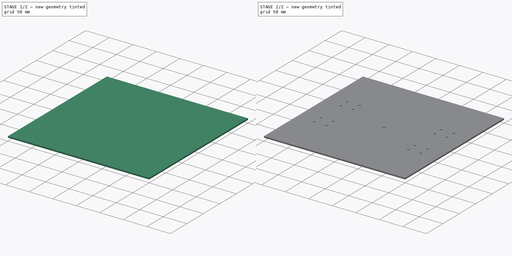
[diagram: build sequence overview — one tinted view per stage of 2, left to right]
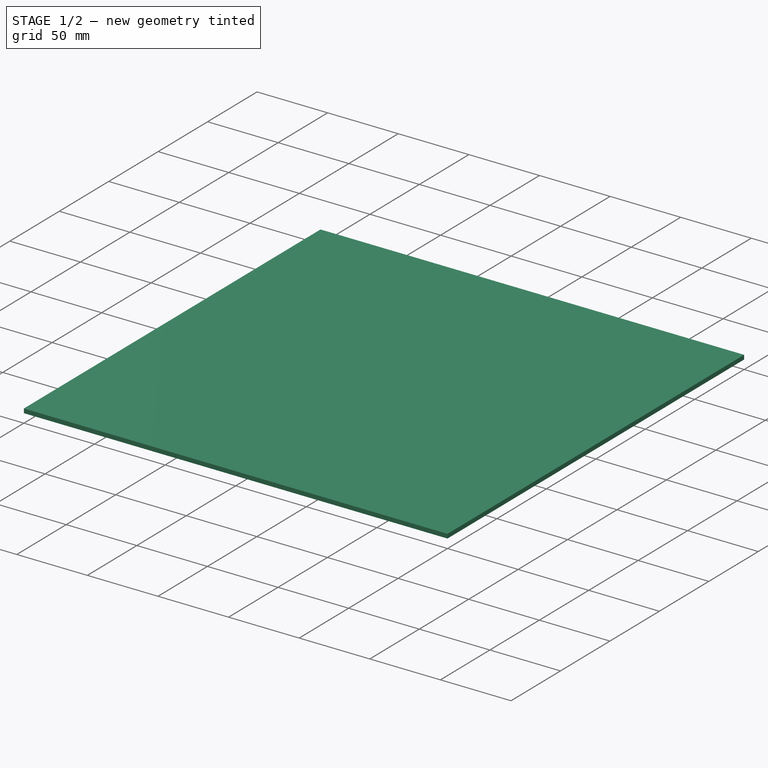
[diagram: stage 1 of 2 — iso view after this stage's code; geometry added in this stage tinted green]
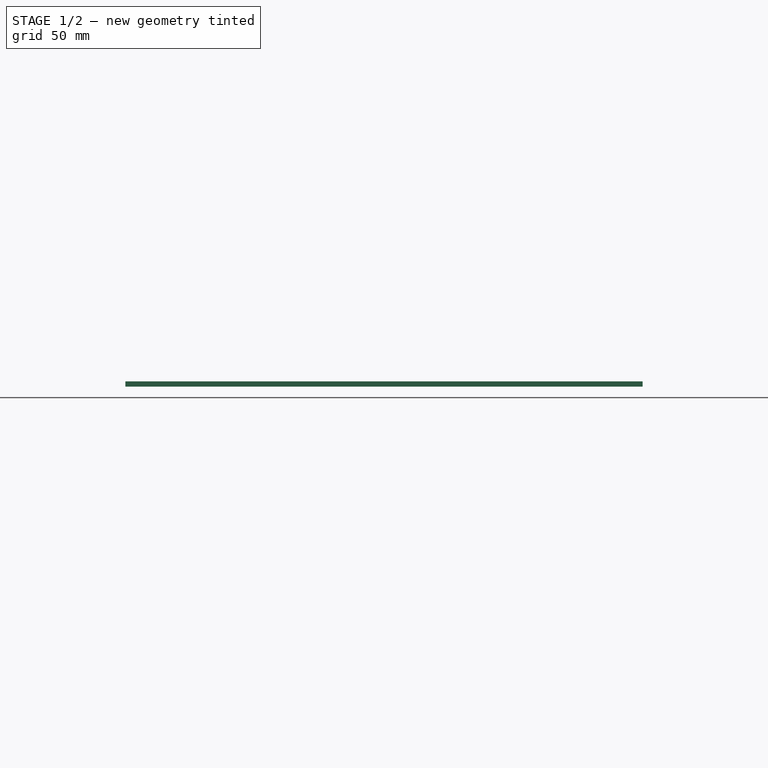
[diagram: stage 1 of 2 — front view after this stage's code; geometry added in this stage tinted green]
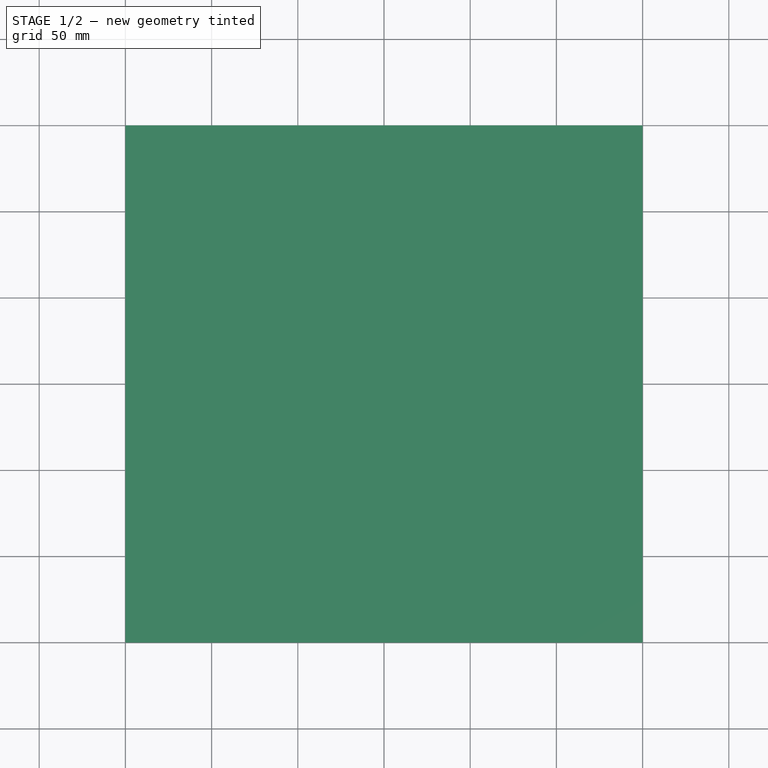
[diagram: stage 1 of 2 — top view after this stage's code; geometry added in this stage tinted green]
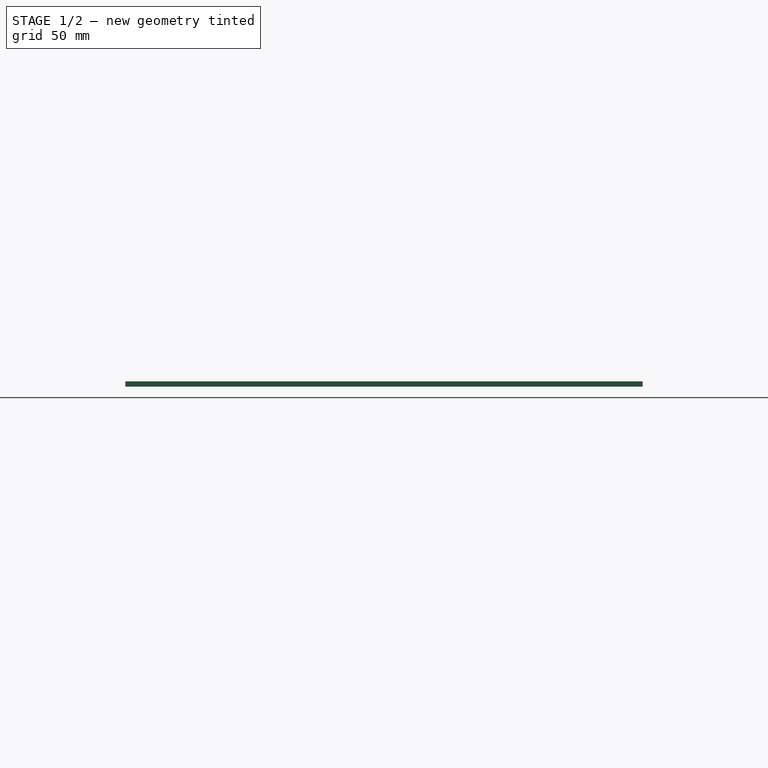
[diagram: stage 1 of 2 — right view after this stage's code; geometry added in this stage tinted green]
FCSTD DOCUMENT  (FreeCAD 1.0R39109 (Git))
Label: 0_aluminum_plate
License: All rights reserved
LicenseURL: https://en.wikipedia.org/wiki/All_rights_reserved
objects: Sketcher::SketchObject×2, App::FeaturePython×1, PartDesign::Pad×1, PartDesign::Hole×1, PartDesign::Body×1
note: 11 computed .brp shape members not serialized (recipe doc carries the construction recipe); baked Part::Feature solids carry a one-line shape summary decoded from their .brp

FEATURE [Sketcher::SketchObject] Sketch
  ArcFitTolerance = 1e-06
  AttachmentSupport = -> [XY_Plane]
  FullyConstrained = true
  MakeInternals = false
  MapMode = 5
  expr: Constraints[10] = dd.L
  expr: Constraints[11] = dd.W_1
  sketch-geometry (5):
    g0: LineSegment StartX=-150 StartY=-150 StartZ=0 EndX=150 EndY=-150 EndZ=0
    g1: LineSegment StartX=150 StartY=-150 StartZ=0 EndX=150 EndY=150 EndZ=0
    g2: LineSegment StartX=150 StartY=150 StartZ=0 EndX=-150 EndY=150 EndZ=0
    g3: LineSegment StartX=-150 StartY=150 StartZ=0 EndX=-150 EndY=-150 EndZ=0
    g4: GeomPoint [constr] X=0 Y=0 Z=0
  constraints (12):
    c: Coincident(g0,g1)
    c: Coincident(g1,g2)
    c: Coincident(g2,g3)
    c: Coincident(g3,g0)
    c: Horizontal(g0)
    c: Horizontal(g2)
    c: Vertical(g1)
    c: Vertical(g3)
    c: Symmetric(g2,g0,g4)
    c: Coincident(g4,g-1)
    c: DistanceY(g3,g3) = 300
    c: Distance(g0,g0) = 300
FEATURE [App::FeaturePython] dd  # WARN: FeaturePython — macro-defined, semantics opaque (R4)
  Bearing_D = 80
  D_1 = 3
  DynamicData = Created with DynamicData (v2.74) workbench. | This is a simple container object built | for holding custom properties.
  Hole_D_X = 26
  Hole_D_Y = 20
  L = 300
  Rail_D = 200
  W_1 = 300
FEATURE [PartDesign::Pad] Pad
  Direction = (0,0,1)
  Length = 3
  Length2 = 10
  Profile = -> Sketch
  ReferenceAxis = -> Sketch [N_Axis]
  Refine = true
  Suppressed = false
  Type = 0
  expr: Length = dd.D_1
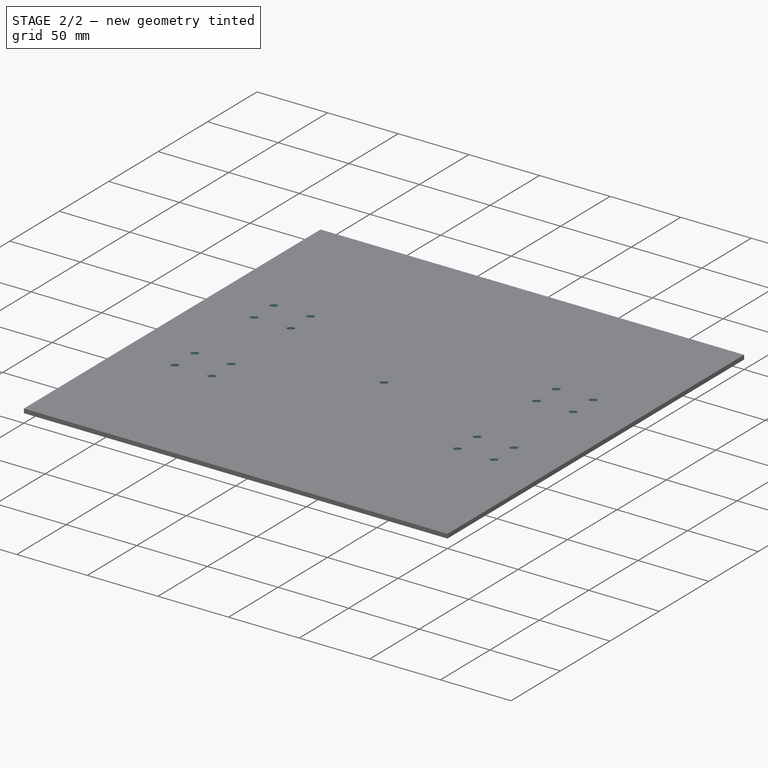
[diagram: stage 2 of 2 — iso view after this stage's code; geometry added in this stage tinted green]
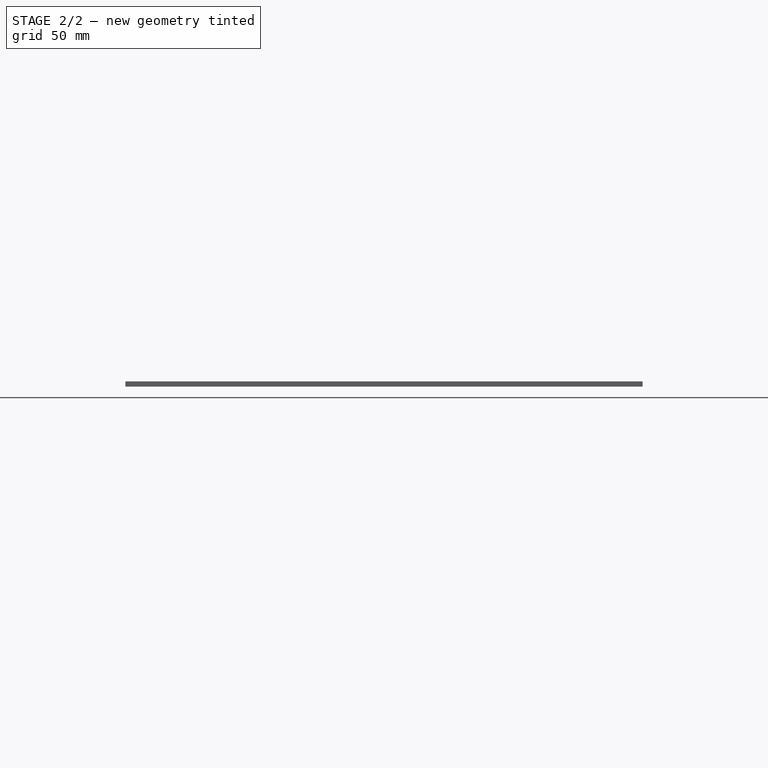
[diagram: stage 2 of 2 — front view after this stage's code; geometry added in this stage tinted green]
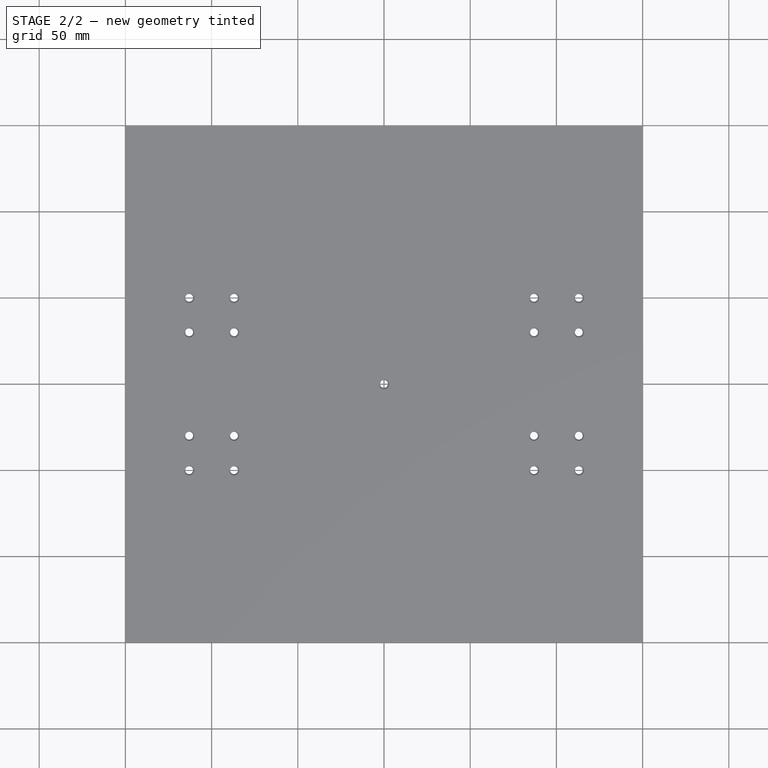
[diagram: stage 2 of 2 — top view after this stage's code; geometry added in this stage tinted green]
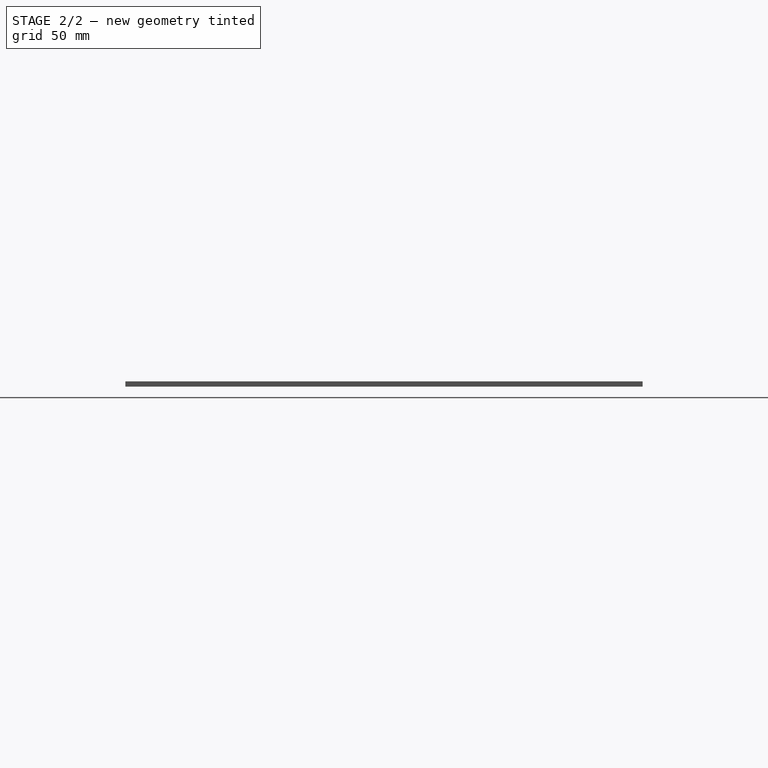
[diagram: stage 2 of 2 — right view after this stage's code; geometry added in this stage tinted green]
FEATURE [Sketcher::SketchObject] Sketch001
  ArcFitTolerance = 1e-06
  AttachmentSupport = -> [Pad]
  ExternalGeometry = -> [Pad]
  FullyConstrained = false
  MakeInternals = false
  MapMode = 5
  Placement = pos=(0,0,3) rot=(0,0,1;0rad)
  expr: Constraints[56] = dd.Hole_D_Y
  expr: Constraints[57] = dd.Hole_D_X
  expr: Constraints[8] = dd.Rail_D
  expr: Constraints[9] = dd.Bearing_D
  sketch-geometry (45):
    g0: LineSegment [constr] StartX=100 StartY=-40 StartZ=0 EndX=100 EndY=40 EndZ=0
    g1: LineSegment [constr] StartX=100 StartY=40 StartZ=0 EndX=-100 EndY=40 EndZ=0
    g2: LineSegment [constr] StartX=-100 StartY=40 StartZ=0 EndX=-100 EndY=-40 EndZ=0
    g3: LineSegment [constr] StartX=-100 StartY=-40 StartZ=0 EndX=100 EndY=-40 EndZ=0
    g4: LineSegment [constr] StartX=-87 StartY=30 StartZ=0 EndX=-87 EndY=50 EndZ=0
    g5: LineSegment [constr] StartX=-87 StartY=50 StartZ=0 EndX=-113 EndY=50 EndZ=0
    g6: LineSegment [constr] StartX=-113 StartY=50 StartZ=0 EndX=-113 EndY=30 EndZ=0
    g7: LineSegment [constr] StartX=-113 StartY=30 StartZ=0 EndX=-87 EndY=30 EndZ=0
    g8: GeomPoint [constr] X=-100 Y=40 Z=0
    g9: LineSegment [constr] StartX=113 StartY=30 StartZ=0 EndX=113 EndY=50 EndZ=0
    g10: LineSegment [constr] StartX=113 StartY=50 StartZ=0 EndX=87 EndY=50 EndZ=0
    g11: LineSegment [constr] StartX=87 StartY=50 StartZ=0 EndX=87 EndY=30 EndZ=0
    g12: LineSegment [constr] StartX=87 StartY=30 StartZ=0 EndX=113 EndY=30 EndZ=0
    g13: GeomPoint [constr] X=100 Y=40 Z=0
    g14: LineSegment [constr] StartX=87 StartY=-30 StartZ=0 EndX=87 EndY=-50 EndZ=0
    g15: LineSegment [constr] StartX=87 StartY=-50 StartZ=0 EndX=113 EndY=-50 EndZ=0
    g16: LineSegment [constr] StartX=113 StartY=-50 StartZ=0 EndX=113 EndY=-30 EndZ=0
    g17: LineSegment [constr] StartX=113 StartY=-30 StartZ=0 EndX=87 EndY=-30 EndZ=0
    g18: GeomPoint [constr] X=100 Y=-40 Z=0
    g19: LineSegment [constr] StartX=-87 StartY=-50 StartZ=0 EndX=-87 EndY=-30 EndZ=0
    g20: LineSegment [constr] StartX=-87 StartY=-30 StartZ=0 EndX=-113 EndY=-30 EndZ=0
    g21: LineSegment [constr] StartX=-113 StartY=-30 StartZ=0 EndX=-113 EndY=-50 EndZ=0
    g22: LineSegment [constr] StartX=-113 StartY=-50 StartZ=0 EndX=-87 EndY=-50 EndZ=0
    g23: GeomPoint [constr] X=-100 Y=-40 Z=0
    g24: Circle CenterX=-113 CenterY=50 CenterZ=0 NormalX=0 NormalY=0 NormalZ=1 AngleXU=0 Radius=2
    g25: Circle CenterX=-87 CenterY=50 CenterZ=0 NormalX=0 NormalY=0 NormalZ=1 AngleXU=0 Radius=2
    g26: Circle CenterX=-87 CenterY=30 CenterZ=0 NormalX=0 NormalY=0 NormalZ=1 AngleXU=0 Radius=2
    g27: Circle CenterX=-113 CenterY=30 CenterZ=0 NormalX=0 NormalY=0 NormalZ=1 AngleXU=0 Radius=2
    g28: Circle CenterX=-113 CenterY=-30 CenterZ=0 NormalX=0 NormalY=0 NormalZ=1 AngleXU=0 Radius=2
    g29: Circle CenterX=-87 CenterY=-30 CenterZ=0 NormalX=0 NormalY=0 NormalZ=1 AngleXU=0 Radius=2
    g30: Circle CenterX=-87 CenterY=-50 CenterZ=0 NormalX=0 NormalY=0 NormalZ=1 AngleXU=0 Radius=2
    g31: Circle CenterX=-113 CenterY=-50 CenterZ=0 NormalX=0 NormalY=0 NormalZ=1 AngleXU=0 Radius=2
    g32: Circle CenterX=87 CenterY=-30 CenterZ=0 NormalX=0 NormalY=0 NormalZ=1 AngleXU=0 Radius=2
    g33: Circle CenterX=113 CenterY=-30 CenterZ=0 NormalX=0 NormalY=0 NormalZ=1 AngleXU=0 Radius=2
    g34: Circle CenterX=113 CenterY=-50 CenterZ=0 NormalX=0 NormalY=0 NormalZ=1 AngleXU=0 Radius=2
    g35: Circle CenterX=87 CenterY=-50 CenterZ=0 NormalX=0 NormalY=0 NormalZ=1 AngleXU=0 Radius=2
    g36: Circle CenterX=87 CenterY=30 CenterZ=0 NormalX=0 NormalY=0 NormalZ=1 AngleXU=0 Radius=2
    g37: Circle CenterX=87 CenterY=50 CenterZ=0 NormalX=0 NormalY=0 NormalZ=1 AngleXU=0 Radius=2
    g38: Circle CenterX=113 CenterY=50 CenterZ=0 NormalX=0 NormalY=0 NormalZ=1 AngleXU=0 Radius=2
    g39: Circle CenterX=113 CenterY=30 CenterZ=0 NormalX=0 NormalY=0 NormalZ=1 AngleXU=0 Radius=2
    g40: Circle CenterX=0 CenterY=0 CenterZ=0 NormalX=0 NormalY=0 NormalZ=1 AngleXU=0 Radius=2
    g41: LineSegment [constr] StartX=100 StartY=-25.018 StartZ=0 EndX=150 EndY=-25.018 EndZ=0
    g42: LineSegment [constr] StartX=28.6728 StartY=40 StartZ=0 EndX=28.6728 EndY=150 EndZ=0
    g43: LineSegment [constr] StartX=-25.9137 StartY=-40 StartZ=0 EndX=-25.9137 EndY=-150 EndZ=0
    g44: LineSegment [constr] StartX=-100 StartY=-10.2081 StartZ=0 EndX=-150 EndY=-10.2081 EndZ=0
  constraints (106):
    c: Coincident(g0,g1)
    c: Coincident(g1,g2)
    c: Coincident(g2,g3)
    c: Coincident(g3,g0)
    c: Vertical(g0)
    c: Vertical(g2)
    c: Horizontal(g1)
    c: Horizontal(g3)
    c: DistanceX(g3,g3) = 200
    c: DistanceY(g0,g0) = 80
    c: Coincident(g4,g5)
    c: Coincident(g5,g6)
    c: Coincident(g6,g7)
    c: Coincident(g7,g4)
    c: Vertical(g4)
    c: Vertical(g6)
    c: Horizontal(g5)
    c: Horizontal(g7)
    c: Symmetric(g6,g4,g8)
    c: Coincident(g8,g1)
    c: Coincident(g9,g10)
    c: Coincident(g10,g11)
    c: Coincident(g11,g12)
    c: Coincident(g12,g9)
    c: Vertical(g9)
    c: Vertical(g11)
    c: Horizontal(g10)
    c: Horizontal(g12)
    c: Symmetric(g11,g9,g13)
    c: Coincident(g13,g0)
    c: Coincident(g14,g15)
    c: Coincident(g15,g16)
    c: Coincident(g16,g17)
    c: Coincident(g17,g14)
    c: Vertical(g14)
    c: Vertical(g16)
    c: Horizontal(g15)
    c: Horizontal(g17)
    c: Symmetric(g16,g14,g18)
    c: Coincident(g18,g0)
    c: Coincident(g19,g20)
    c: Coincident(g20,g21)
    c: Coincident(g21,g22)
    c: Coincident(g22,g19)
    c: Vertical(g19)
    c: Vertical(g21)
    c: Horizontal(g20)
    c: Horizontal(g22)
    c: Symmetric(g21,g19,g23)
    c: Coincident(g23,g2)
    c: Equal(g19,g6)
    c: Equal(g4,g11)
    c: Equal(g9,g14)
    c: Equal(g7,g20)
    c: Equal(g22,g15)
    c: Equal(g17,g12)
    c: DistanceY(g6,g6) = 20
    c: Distance(g5,g5) = 26
    c: Coincident(g24,g5)
    c: Coincident(g25,g4)
    c: Coincident(g26,g4)
    c: Coincident(g27,g6)
    c: Coincident(g28,g20)
    c: Coincident(g29,g19)
    c: Coincident(g30,g19)
    c: Coincident(g31,g21)
    c: Coincident(g32,g14)
    c: Coincident(g33,g16)
    c: Coincident(g34,g15)
    c: Coincident(g35,g14)
    c: Coincident(g36,g11)
    c: Coincident(g37,g10)
    c: Coincident(g38,g9)
    c: Coincident(g39,g9)
    c: Equal(g24,g25)
    c: Equal(g25,g26)
    c: Equal(g26,g27)
    c: Equal(g27,g28)
    c: Equal(g28,g29)
    c: Equal(g29,g30)
    c: Equal(g30,g31)
    c: Equal(g31,g32)
    c: Equal(g32,g33)
    c: Equal(g33,g34)
    c: Equal(g34,g35)
    c: Equal(g35,g36)
    c: Equal(g36,g39)
    c: Equal(g39,g38)
    c: Equal(g38,g37)
    c: Diameter(g25) = 4
    c: Equal(g40,g26)
    c: PointOnObject(g41,g0)
    c: PointOnObject(g41,g-6)
    c: PointOnObject(g42,g1)
    c: PointOnObject(g42,g-3)
    c: PointOnObject(g43,g3)
    c: PointOnObject(g43,g-5)
    c: PointOnObject(g44,g2)
    c: PointOnObject(g44,g-4)
    c: Horizontal(g44)
    c: Vertical(g43)
    c: Horizontal(g41)
    c: Vertical(g42)
    c: Equal(g42,g43)
    c: Equal(g41,g44)
    c: Coincident(g40,g-1)
FEATURE [PartDesign::Hole] Hole
  BaseFeature = -> Pad
  CustomThreadClearance = 0
  Depth = 25
  DepthType = 0
  Diameter = 4.5
  DrillForDepth = false
  DrillPoint = 1
  DrillPointAngle = 118
  HoleCutCountersinkAngle = 90
  HoleCutCustomValues = false
  HoleCutDepth = 0
  HoleCutDiameter = 6.1
  HoleCutType = 2
  ModelThread = false
  Profile = -> Sketch001
  Refine = true
  Suppressed = false
  Tapered = false
  TaperedAngle = 90
  ThreadClass = 0
  ThreadDepth = 25
  ThreadDepthType = 0
  ThreadDirection = 0
  ThreadFit = 0
  ThreadSize = 11
  ThreadType = 1
  Threaded = false
  UseCustomThreadClearance = false
FEATURE [PartDesign::Body] Body
  AllowCompound = false
  Group = -> [Sketch,Pad,Sketch001,Hole]
  Origin = -> Origin
  Tip = -> Hole
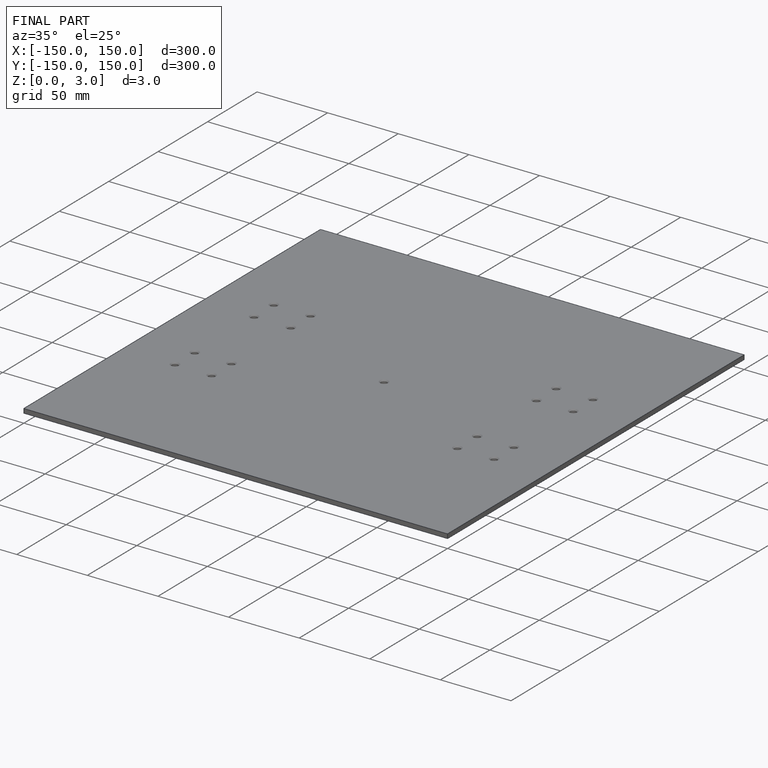
[diagram: finished part — iso view with bounding-box wireframe]
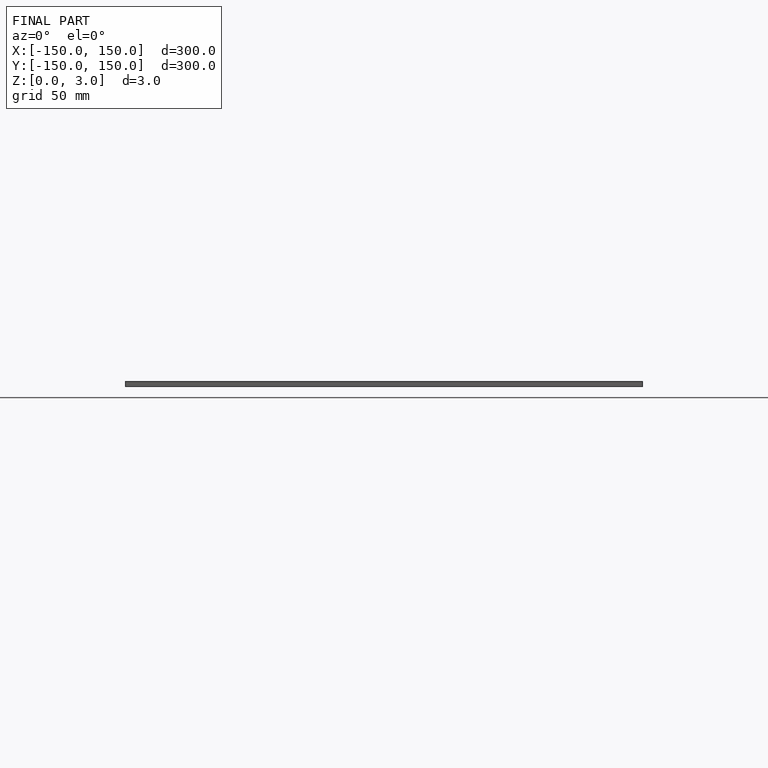
[diagram: finished part — front view with bounding-box wireframe]
